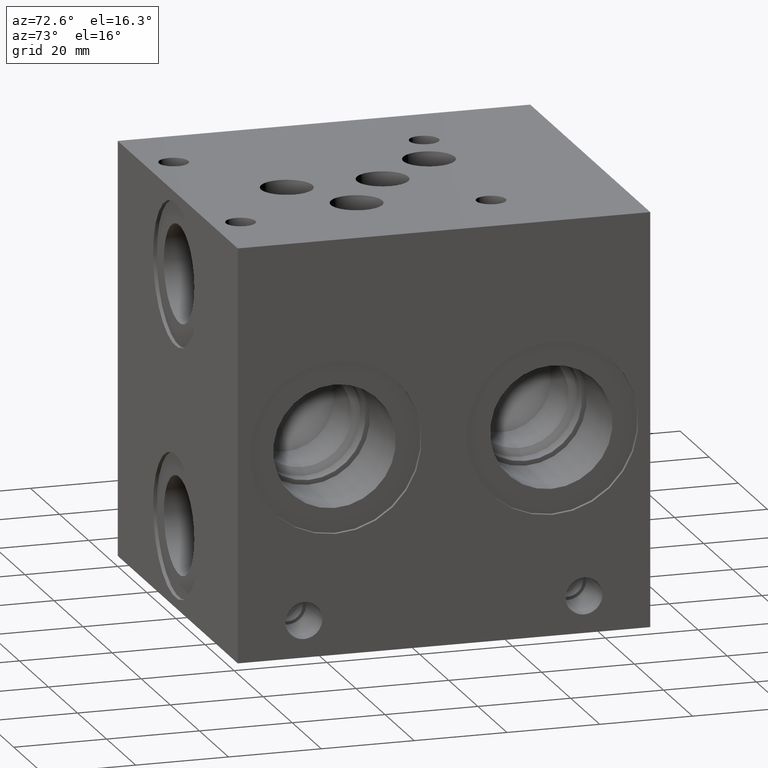
[diagram: clean part render]
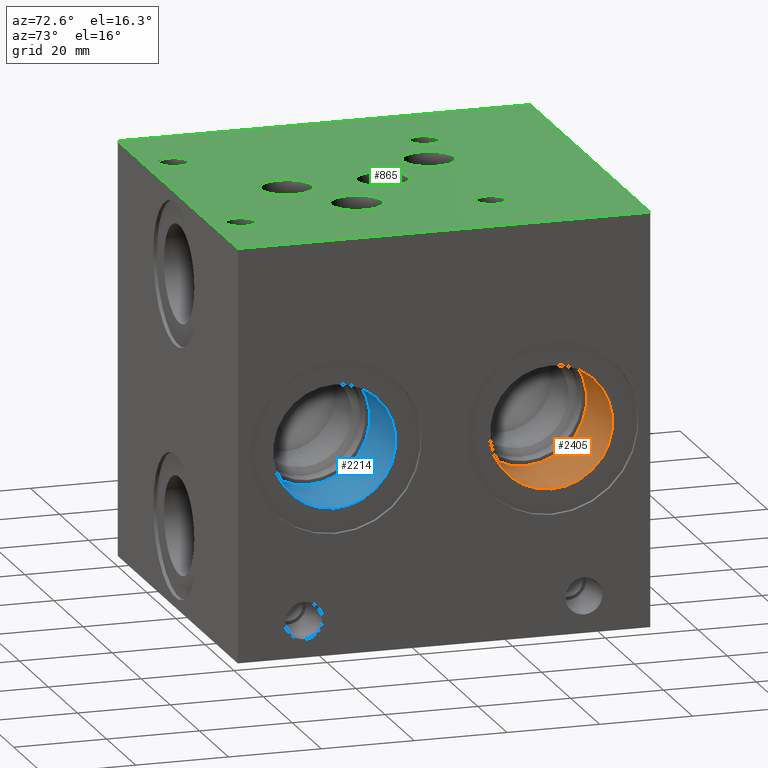
[diagram: same view with three faces highlighted in distinct colors, each labeled with its STEP entity id]
A machine part, auxiliary view with three faces highlighted in distinct colors.
Their STEP definitions:

[orange] entity #2405 — the highlighted cylindrical surface (bore or boss wall) has radius 13.2207 mm, axis along (-1, 0, 0).
#2374=CARTESIAN_POINT('',(3.219000000000000,2.670000000000000,1.229500000000000));
#2375=VERTEX_POINT('',#2374);
#2376=CARTESIAN_POINT('',(3.219000000000000,2.670000000000000,1.750000000000000));
#2377=DIRECTION('',(-1.0,0.0,0.0));
#2378=DIRECTION('',(0.0,-1.0,0.0));
#2379=AXIS2_PLACEMENT_3D('',#2376,#2377,#2378);
#2380=CIRCLE('',#2379,0.520500000000000);
#2381=EDGE_CURVE('',#2375,#2375,#2380,.T.);
#2386=CARTESIAN_POINT('',(3.219000000000000,2.670000000000000,1.750000000000000));
#2387=DIRECTION('',(-1.0,0.0,0.0));
#2388=DIRECTION('',(0.0,-1.0,0.0));
#2389=AXIS2_PLACEMENT_3D('',#2386,#2387,#2388);
#2390=CYLINDRICAL_SURFACE('',#2389,0.520500000000000);
#2391=ORIENTED_EDGE('',*,*,#2381,.F.);
#2392=EDGE_LOOP('',(#2391));
#2393=FACE_OUTER_BOUND('',#2392,.T.);
#2394=CARTESIAN_POINT('',(2.516000000000000,2.670000000000000,1.229500000000000));
#2395=VERTEX_POINT('',#2394);
#2396=CARTESIAN_POINT('',(2.516000000000000,2.670000000000000,1.750000000000000));
#2397=DIRECTION('',(-1.0,0.0,0.0));
#2398=DIRECTION('',(0.0,-1.0,0.0));
#2399=AXIS2_PLACEMENT_3D('',#2396,#2397,#2398);
#2400=CIRCLE('',#2399,0.520500000000000);
#2401=EDGE_CURVE('',#2395,#2395,#2400,.T.);
#2402=ORIENTED_EDGE('',*,*,#2401,.T.);
#2403=EDGE_LOOP('',(#2402));
#2404=FACE_BOUND('',#2403,.T.);
#2405=ADVANCED_FACE('',(#2393,#2404),#2390,.F.);

[blue] entity #2214 — the highlighted cylindrical surface (bore or boss wall) has radius 13.2207 mm, axis along (-1, 0, 0).
#2183=CARTESIAN_POINT('',(3.219000000000000,0.830000000000000,1.229500000000000));
#2184=VERTEX_POINT('',#2183);
#2185=CARTESIAN_POINT('',(3.219000000000000,0.830000000000000,1.750000000000000));
#2186=DIRECTION('',(-1.0,0.0,0.0));
#2187=DIRECTION('',(0.0,-1.0,0.0));
#2188=AXIS2_PLACEMENT_3D('',#2185,#2186,#2187);
#2189=CIRCLE('',#2188,0.520500000000000);
#2190=EDGE_CURVE('',#2184,#2184,#2189,.T.);
#2195=CARTESIAN_POINT('',(3.219000000000000,0.830000000000000,1.750000000000000));
#2196=DIRECTION('',(-1.0,0.0,0.0));
#2197=DIRECTION('',(0.0,-1.0,0.0));
#2198=AXIS2_PLACEMENT_3D('',#2195,#2196,#2197);
#2199=CYLINDRICAL_SURFACE('',#2198,0.520500000000000);
#2200=ORIENTED_EDGE('',*,*,#2190,.F.);
#2201=EDGE_LOOP('',(#2200));
#2202=FACE_OUTER_BOUND('',#2201,.T.);
#2203=CARTESIAN_POINT('',(2.516000000000000,0.830000000000000,1.229500000000000));
#2204=VERTEX_POINT('',#2203);
#2205=CARTESIAN_POINT('',(2.516000000000000,0.830000000000000,1.750000000000000));
#2206=DIRECTION('',(-1.0,0.0,0.0));
#2207=DIRECTION('',(0.0,-1.0,0.0));
#2208=AXIS2_PLACEMENT_3D('',#2205,#2206,#2207);
#2209=CIRCLE('',#2208,0.520500000000000);
#2210=EDGE_CURVE('',#2204,#2204,#2209,.T.);
#2211=ORIENTED_EDGE('',*,*,#2210,.T.);
#2212=EDGE_LOOP('',(#2211));
#2213=FACE_BOUND('',#2212,.T.);
#2214=ADVANCED_FACE('',(#2202,#2213),#2199,.F.);

[green] entity #865 — the highlighted planar face has unit normal (0, 0, -1).
#79=CARTESIAN_POINT('',(2.500000000000000,1.312000000000000,3.500000000000000));
#80=VERTEX_POINT('',#79);
#81=CARTESIAN_POINT('',(2.281000000000000,1.312000000000000,3.500000000000000));
#82=DIRECTION('',(0.0,0.0,-1.0));
#83=DIRECTION('',(1.0,0.0,0.0));
#84=AXIS2_PLACEMENT_3D('',#81,#82,#83);
#85=CIRCLE('',#84,0.219000000000000);
#86=EDGE_CURVE('',#80,#80,#85,.T.);
#150=CARTESIAN_POINT('',(1.468800000000000,2.249499999999999,3.500000000000000));
#151=VERTEX_POINT('',#150);
#152=CARTESIAN_POINT('',(1.249800000000000,2.249499999999999,3.500000000000000));
#153=DIRECTION('',(0.0,0.0,-1.0));
#154=DIRECTION('',(1.0,0.0,0.0));
#155=AXIS2_PLACEMENT_3D('',#152,#153,#154);
#156=CIRCLE('',#155,0.219000000000000);
#157=EDGE_CURVE('',#151,#151,#156,.T.);
#221=CARTESIAN_POINT('',(1.906000000000000,1.718200000000000,3.500000000000000));
#222=VERTEX_POINT('',#221);
#223=CARTESIAN_POINT('',(1.687000000000000,1.718200000000000,3.500000000000000));
#224=DIRECTION('',(0.0,0.0,-1.0));
#225=DIRECTION('',(1.0,0.0,0.0));
#226=AXIS2_PLACEMENT_3D('',#223,#224,#225);
#227=CIRCLE('',#226,0.219000000000000);
#228=EDGE_CURVE('',#222,#222,#227,.T.);
#292=CARTESIAN_POINT('',(1.906200000000000,0.905800000000000,3.500000000000000));
#293=VERTEX_POINT('',#292);
#294=CARTESIAN_POINT('',(1.687200000000000,0.905800000000000,3.500000000000000));
#295=DIRECTION('',(0.0,0.0,-1.0));
#296=DIRECTION('',(1.0,0.0,0.0));
#297=AXIS2_PLACEMENT_3D('',#294,#295,#296);
#298=CIRCLE('',#297,0.219000000000000);
#299=EDGE_CURVE('',#293,#293,#298,.T.);
#363=CARTESIAN_POINT('',(0.843500000000000,0.249500000000000,3.500000000000000));
#364=VERTEX_POINT('',#363);
#365=CARTESIAN_POINT('',(0.718500000000000,0.249500000000000,3.500000000000000));
#366=DIRECTION('',(0.0,0.0,-1.0));
#367=DIRECTION('',(1.0,0.0,0.0));
#368=AXIS2_PLACEMENT_3D('',#365,#366,#367);
#369=CIRCLE('',#368,0.125000000000000);
#370=EDGE_CURVE('',#364,#364,#369,.T.);
#474=CARTESIAN_POINT('',(2.656000000000000,0.249500000000000,3.500000000000000));
#475=VERTEX_POINT('',#474);
#476=CARTESIAN_POINT('',(2.531000000000000,0.249500000000000,3.500000000000000));
#477=DIRECTION('',(0.0,0.0,-1.0));
#478=DIRECTION('',(1.0,0.0,0.0));
#479=AXIS2_PLACEMENT_3D('',#476,#477,#478);
#480=CIRCLE('',#479,0.125000000000000);
#481=EDGE_CURVE('',#475,#475,#480,.T.);
#585=CARTESIAN_POINT('',(2.656000000000000,2.374500000000000,3.500000000000000));
#586=VERTEX_POINT('',#585);
#587=CARTESIAN_POINT('',(2.531000000000000,2.374500000000000,3.500000000000000));
#588=DIRECTION('',(0.0,0.0,-1.0));
#589=DIRECTION('',(1.0,0.0,0.0));
#590=AXIS2_PLACEMENT_3D('',#587,#588,#589);
#591=CIRCLE('',#590,0.125000000000000);
#592=EDGE_CURVE('',#586,#586,#591,.T.);
#696=CARTESIAN_POINT('',(0.843000000000000,2.375000000000000,3.500000000000000));
#697=VERTEX_POINT('',#696);
#698=CARTESIAN_POINT('',(0.718000000000000,2.375000000000000,3.500000000000000));
#699=DIRECTION('',(0.0,0.0,-1.0));
#700=DIRECTION('',(1.0,0.0,0.0));
#701=AXIS2_PLACEMENT_3D('',#698,#699,#700);
#702=CIRCLE('',#701,0.125000000000000);
#703=EDGE_CURVE('',#697,#697,#702,.T.);
#802=CARTESIAN_POINT('',(0.0,3.500000000000000,3.500000000000000));
#803=DIRECTION('',(0.0,0.0,-1.0));
#804=DIRECTION('',(-1.0,0.0,0.0));
#805=AXIS2_PLACEMENT_3D('',#802,#803,#804);
#806=PLANE('',#805);
#807=CARTESIAN_POINT('',(0.0,0.0,3.500000000000000));
#808=VERTEX_POINT('',#807);
#809=CARTESIAN_POINT('',(0.0,3.500000000000000,3.500000000000000));
#810=VERTEX_POINT('',#809);
#811=CARTESIAN_POINT('',(0.0,0.0,3.500000000000000));
#812=DIRECTION('',(0.0,1.0,0.0));
#813=VECTOR('',#812,3.500000000000000);
#814=LINE('',#811,#813);
#815=EDGE_CURVE('',#808,#810,#814,.T.);
#816=ORIENTED_EDGE('',*,*,#815,.F.);
#817=CARTESIAN_POINT('',(3.250000000000000,0.0,3.500000000000000));
#818=VERTEX_POINT('',#817);
#819=CARTESIAN_POINT('',(3.250000000000000,0.0,3.500000000000000));
#820=DIRECTION('',(-1.0,0.0,0.0));
#821=VECTOR('',#820,3.250000000000000);
#822=LINE('',#819,#821);
#823=EDGE_CURVE('',#818,#808,#822,.T.);
#824=ORIENTED_EDGE('',*,*,#823,.F.);
#825=CARTESIAN_POINT('',(3.250000000000000,3.500000000000000,3.500000000000000));
#826=VERTEX_POINT('',#825);
#827=CARTESIAN_POINT('',(3.250000000000000,3.500000000000000,3.500000000000000));
#828=DIRECTION('',(0.0,-1.0,0.0));
#829=VECTOR('',#828,3.500000000000000);
#830=LINE('',#827,#829);
#831=EDGE_CURVE('',#826,#818,#830,.T.);
#832=ORIENTED_EDGE('',*,*,#831,.F.);
#833=CARTESIAN_POINT('',(0.0,3.500000000000000,3.500000000000000));
#834=DIRECTION('',(1.0,0.0,0.0));
#835=VECTOR('',#834,3.250000000000000);
#836=LINE('',#833,#835);
#837=EDGE_CURVE('',#810,#826,#836,.T.);
#838=ORIENTED_EDGE('',*,*,#837,.F.);
#839=EDGE_LOOP('',(#816,#824,#832,#838));
#840=FACE_OUTER_BOUND('',#839,.T.);
#841=ORIENTED_EDGE('',*,*,#86,.T.);
#842=EDGE_LOOP('',(#841));
#843=FACE_BOUND('',#842,.T.);
#844=ORIENTED_EDGE('',*,*,#157,.T.);
#845=EDGE_LOOP('',(#844));
#846=FACE_BOUND('',#845,.T.);
#847=ORIENTED_EDGE('',*,*,#228,.T.);
#848=EDGE_LOOP('',(#847));
#849=FACE_BOUND('',#848,.T.);
#850=ORIENTED_EDGE('',*,*,#299,.T.);
#851=EDGE_LOOP('',(#850));
#852=FACE_BOUND('',#851,.T.);
#853=ORIENTED_EDGE('',*,*,#370,.T.);
#854=EDGE_LOOP('',(#853));
#855=FACE_BOUND('',#854,.T.);
#856=ORIENTED_EDGE('',*,*,#481,.T.);
#857=EDGE_LOOP('',(#856));
#858=FACE_BOUND('',#857,.T.);
#859=ORIENTED_EDGE('',*,*,#592,.T.);
#860=EDGE_LOOP('',(#859));
#861=FACE_BOUND('',#860,.T.);
#862=ORIENTED_EDGE('',*,*,#703,.T.);
#863=EDGE_LOOP('',(#862));
#864=FACE_BOUND('',#863,.T.);
#865=ADVANCED_FACE('',(#840,#843,#846,#849,#852,#855,#858,#861,#864),#806,.F.);